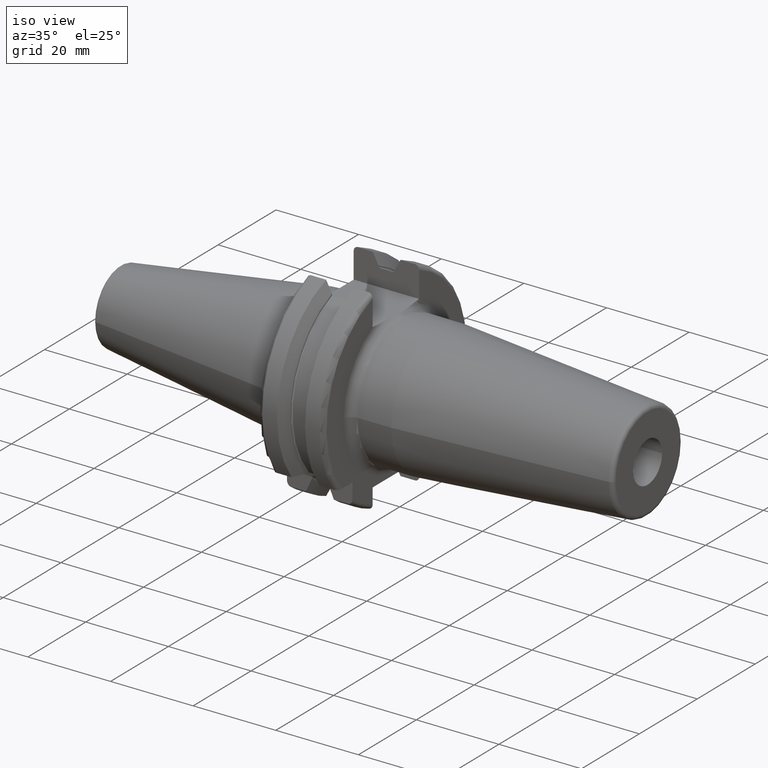
[diagram: clean part render]
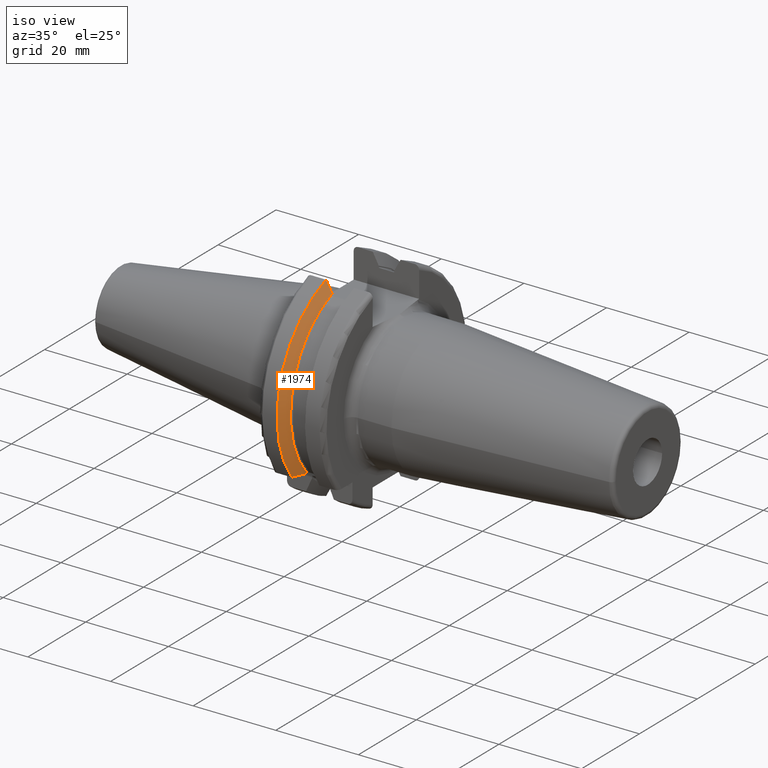
[diagram: same view with one face highlighted and labeled with its STEP entity id]
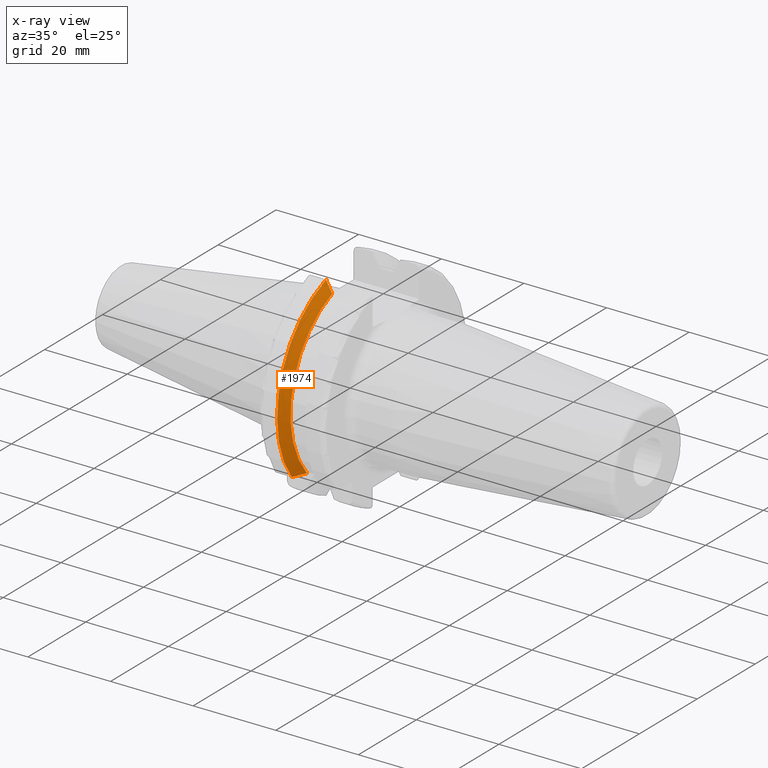
[diagram: x-ray of the same camera — body ghosted, the highlighted face saturated]
A machine part, iso view. The second image highlights one B-rep face of the part: STEP entity #1974.
The next image is the same camera in x-ray: the body ghosted, the highlighted face saturated — about 0% of this face is hidden behind the body in this view.
In plain terms, the highlighted conical surface has half-angle 60 deg.
Its self-contained STEP definition (entity closure, byte-faithful):
#360=CARTESIAN_POINT('',(9.2625E0,0.E0,0.E0));
#361=DIRECTION('',(1.E0,0.E0,0.E0));
#362=DIRECTION('',(0.E0,-3.583743170026E-1,9.335779822344E-1));
#363=AXIS2_PLACEMENT_3D('',#360,#361,#362);
#365=CARTESIAN_POINT('',(7.803274427933E0,-1.998749859287E1,-1.5E1));
#366=CARTESIAN_POINT('',(7.981109124262E0,-1.960238846957E1,-1.5E1));
#367=CARTESIAN_POINT('',(8.326274153407E0,-1.884688509238E1,-1.5E1));
#368=CARTESIAN_POINT('',(8.812154104083E0,-1.775879937320E1,-1.5E1));
#369=CARTESIAN_POINT('',(9.115792378036E0,-1.706160176959E1,-1.5E1));
#370=CARTESIAN_POINT('',(9.2625E0,-1.672022802897E1,-1.5E1));
#372=CARTESIAN_POINT('',(7.803274427933E0,-8.05E0,2.365792890344E1));
#373=CARTESIAN_POINT('',(7.972427442555E0,-8.05E0,2.334845081669E1));
#374=CARTESIAN_POINT('',(8.306073844189E0,-8.05E0,2.273675949894E1));
#375=CARTESIAN_POINT('',(8.792438946834E0,-8.05E0,2.184111363646E1));
#376=CARTESIAN_POINT('',(9.107378251064E0,-8.05E0,2.125833411433E1));
#377=CARTESIAN_POINT('',(9.2625E0,-8.05E0,2.097053946232E1));
#498=CARTESIAN_POINT('',(7.803274427933E0,0.E0,0.E0));
#499=DIRECTION('',(1.E0,0.E0,0.E0));
#500=DIRECTION('',(0.E0,-3.221288515406E-1,9.466958344712E-1));
#501=AXIS2_PLACEMENT_3D('',#498,#499,#500);
#1265=CARTESIAN_POINT('',(9.2625E0,-8.05E0,2.097053946232E1));
#1267=VERTEX_POINT('',#1265);
#1277=CARTESIAN_POINT('',(9.2625E0,-1.672022802897E1,-1.5E1));
#1279=VERTEX_POINT('',#1277);
#1311=VERTEX_POINT('',#372);
#1332=VERTEX_POINT('',#365);
#1960=CARTESIAN_POINT('',(8.532887213966E0,0.E0,0.E0));
#1961=DIRECTION('',(-1.E0,0.E0,0.E0));
#1962=DIRECTION('',(0.E0,1.E0,0.E0));
#1963=AXIS2_PLACEMENT_3D('',#1960,#1961,#1962);
#1964=CONICAL_SURFACE('',#1963,2.372627358474E1,6.E1);
#1965=ORIENTED_EDGE('',*,*,#1906,.T.);
#1967=ORIENTED_EDGE('',*,*,#1966,.F.);
#1969=ORIENTED_EDGE('',*,*,#1968,.F.);
#1971=ORIENTED_EDGE('',*,*,#1970,.T.);
#1972=EDGE_LOOP('',(#1965,#1967,#1969,#1971));
#1973=FACE_OUTER_BOUND('',#1972,.F.);
#1974=ADVANCED_FACE('',(#1973),#1964,.T.);
#364=CIRCLE('',#363,2.246254716948E1);
#371=B_SPLINE_CURVE_WITH_KNOTS('',3,(#365,#366,#367,#368,#369,#370),
.UNSPECIFIED.,.F.,.F.,(4,1,1,4),(0.E0,3.333333333333E-1,6.666666666667E-1,1.E0),
.UNSPECIFIED.);
#378=B_SPLINE_CURVE_WITH_KNOTS('',3,(#372,#373,#374,#375,#376,#377),
.UNSPECIFIED.,.F.,.F.,(4,1,1,4),(0.E0,3.333333333333E-1,6.666666666667E-1,1.E0),
.UNSPECIFIED.);
#502=CIRCLE('',#501,2.499E1);
#1906=EDGE_CURVE('',#1267,#1279,#364,.T.);
#1966=EDGE_CURVE('',#1332,#1279,#371,.T.);
#1968=EDGE_CURVE('',#1311,#1332,#502,.T.);
#1970=EDGE_CURVE('',#1311,#1267,#378,.T.);